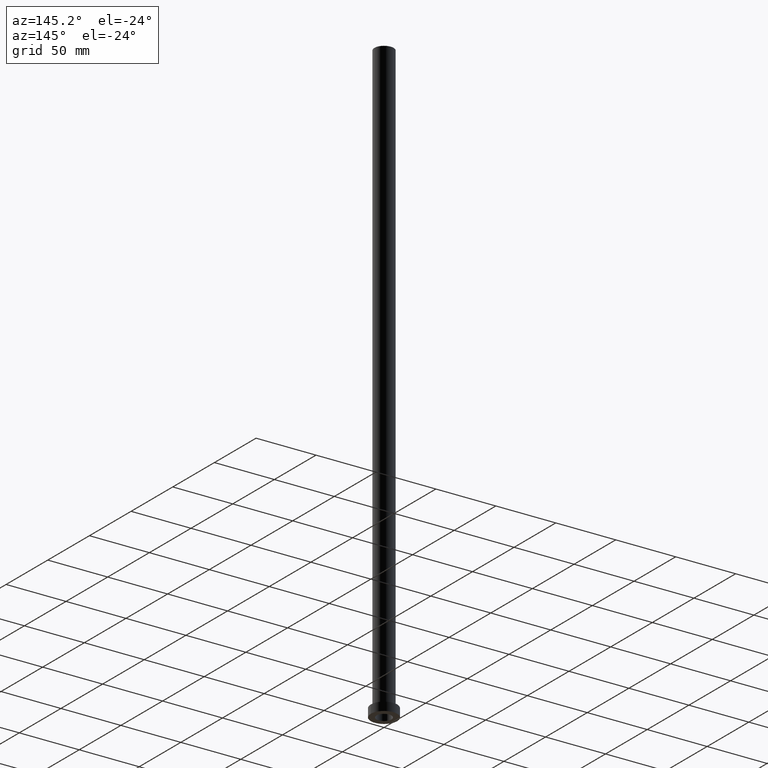
[diagram: clean part render]
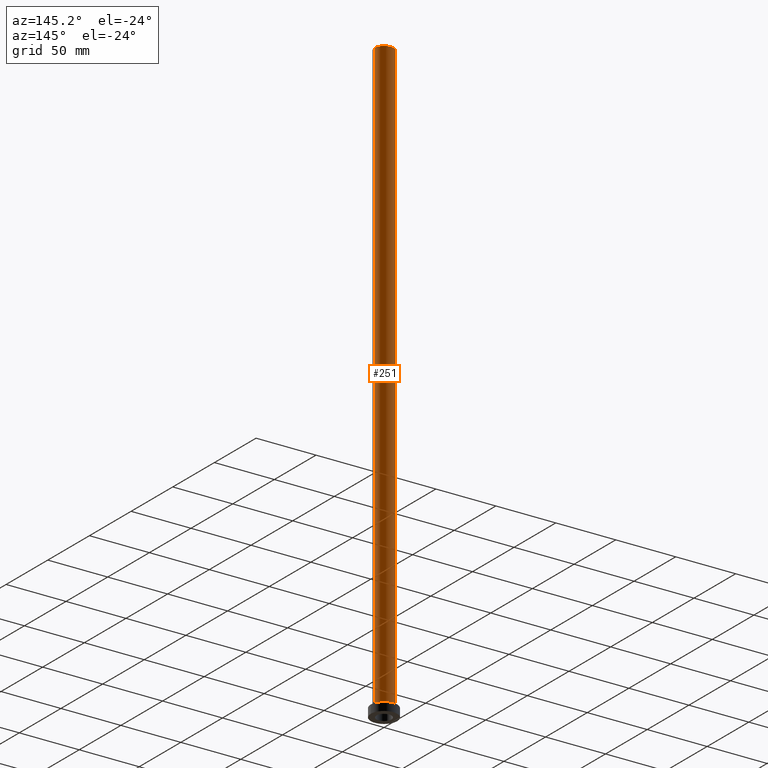
[diagram: same view with one face highlighted and labeled with its STEP entity id]
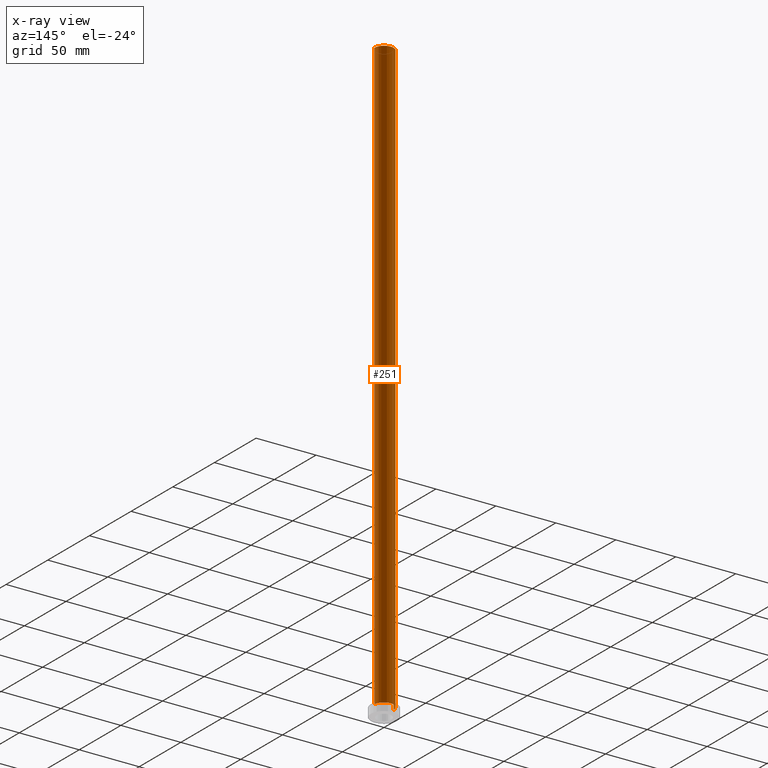
[diagram: x-ray of the same camera — body ghosted, the highlighted face saturated]
A machine part, auxiliary view. The second image highlights one B-rep face of the part: STEP entity #251.
The next image is the same camera in x-ray: the body ghosted, the highlighted face saturated — about 0% of this face is hidden behind the body in this view.
In plain terms, the highlighted cylindrical surface (edge-blend (fillet) strip) has radius 8 mm, axis along (-0, -0, -1).
Its self-contained STEP definition (entity closure, byte-faithful):
#31 = EDGE_CURVE ( 'NONE', #159, #256, #413, .T. ) ;
#53 = CARTESIAN_POINT ( 'NONE',  ( -8.000000000000000000, 0.000000000000000000, 500.0000000000000000 ) ) ;
#55 = EDGE_CURVE ( 'NONE', #159, #269, #121, .T. ) ;
#68 = CARTESIAN_POINT ( 'NONE',  ( 0.000000000000000000, 0.000000000000000000, 500.0000000000000000 ) ) ;
#120 = EDGE_LOOP ( 'NONE', ( #198, #294, #303, #239 ) ) ;
#121 = LINE ( 'NONE', #411, #363 ) ;
#123 = FACE_OUTER_BOUND ( 'NONE', #120, .T. ) ;
#141 = AXIS2_PLACEMENT_3D ( 'NONE', #227, #215, #203 ) ;
#142 = CARTESIAN_POINT ( 'NONE',  ( 8.000000000000000000, 9.797174393178825657E-16, 7.699999999999985079 ) ) ;
#147 = DIRECTION ( 'NONE',  ( 0.000000000000000000, 0.000000000000000000, 1.000000000000000000 ) ) ;
#155 = LINE ( 'NONE', #53, #438 ) ;
#159 = VERTEX_POINT ( 'NONE', #343 ) ;
#198 = ORIENTED_EDGE ( 'NONE', *, *, #31, .F. ) ;
#203 = DIRECTION ( 'NONE',  ( 1.000000000000000000, 0.000000000000000000, 0.000000000000000000 ) ) ;
#213 = EDGE_CURVE ( 'NONE', #256, #260, #155, .T. ) ;
#215 = DIRECTION ( 'NONE',  ( 0.000000000000000000, 0.000000000000000000, 1.000000000000000000 ) ) ;
#227 = CARTESIAN_POINT ( 'NONE',  ( 0.000000000000000000, 0.000000000000000000, 7.699999999999985079 ) ) ;
#237 = DIRECTION ( 'NONE',  ( -0.000000000000000000, -0.000000000000000000, -1.000000000000000000 ) ) ;
#239 = ORIENTED_EDGE ( 'NONE', *, *, #213, .F. ) ;
#246 = DIRECTION ( 'NONE',  ( -0.000000000000000000, -0.000000000000000000, -1.000000000000000000 ) ) ;
#249 = CARTESIAN_POINT ( 'NONE',  ( -8.000000000000000000, 0.000000000000000000, 7.699999999999985079 ) ) ;
#251 = ADVANCED_FACE ( 'NONE', ( #123 ), #374, .T. ) ;
#256 = VERTEX_POINT ( 'NONE', #348 ) ;
#260 = VERTEX_POINT ( 'NONE', #249 ) ;
#269 = VERTEX_POINT ( 'NONE', #142 ) ;
#273 = AXIS2_PLACEMENT_3D ( 'NONE', #333, #147, #439 ) ;
#294 = ORIENTED_EDGE ( 'NONE', *, *, #55, .T. ) ;
#303 = ORIENTED_EDGE ( 'NONE', *, *, #433, .T. ) ;
#330 = DIRECTION ( 'NONE',  ( -0.000000000000000000, -0.000000000000000000, -1.000000000000000000 ) ) ;
#333 = CARTESIAN_POINT ( 'NONE',  ( 0.000000000000000000, 0.000000000000000000, 500.0000000000000000 ) ) ;
#343 = CARTESIAN_POINT ( 'NONE',  ( 8.000000000000000000, 9.797174393178825657E-16, 500.0000000000000000 ) ) ;
#348 = CARTESIAN_POINT ( 'NONE',  ( -8.000000000000000000, 0.000000000000000000, 500.0000000000000000 ) ) ;
#363 = VECTOR ( 'NONE', #237, 1000.000000000000000 ) ;
#374 = CYLINDRICAL_SURFACE ( 'NONE', #395, 8.000000000000000000 ) ;
#382 = CIRCLE ( 'NONE', #141, 8.000000000000000000 ) ;
#395 = AXIS2_PLACEMENT_3D ( 'NONE', #68, #246, #428 ) ;
#411 = CARTESIAN_POINT ( 'NONE',  ( 8.000000000000000000, 9.797174393178825657E-16, 500.0000000000000000 ) ) ;
#413 = CIRCLE ( 'NONE', #273, 8.000000000000000000 ) ;
#428 = DIRECTION ( 'NONE',  ( -1.000000000000000000, 0.000000000000000000, 0.000000000000000000 ) ) ;
#433 = EDGE_CURVE ( 'NONE', #269, #260, #382, .T. ) ;
#438 = VECTOR ( 'NONE', #330, 1000.000000000000000 ) ;
#439 = DIRECTION ( 'NONE',  ( 1.000000000000000000, 0.000000000000000000, 0.000000000000000000 ) ) ;